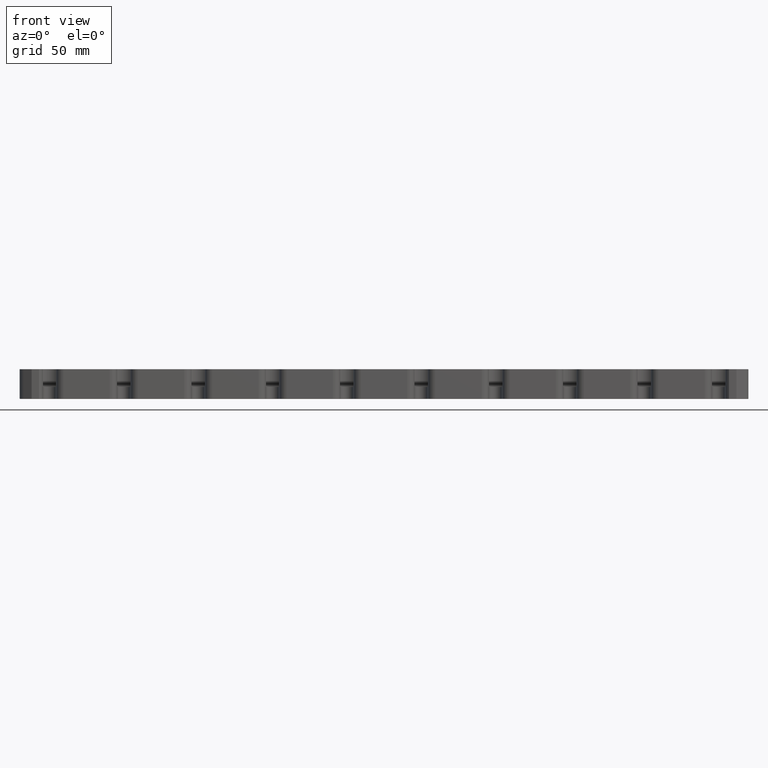
[diagram: clean part render]
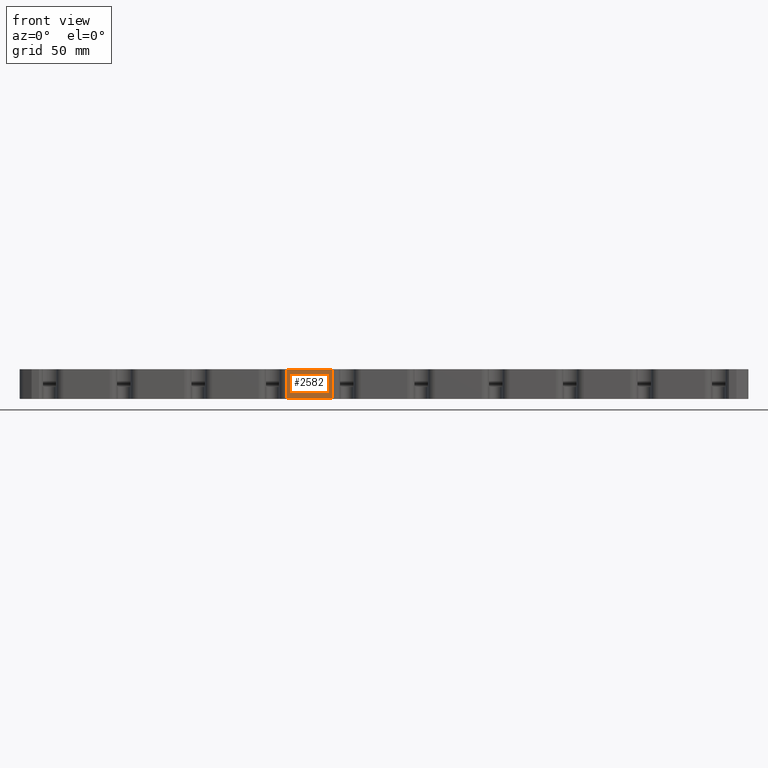
[diagram: same view with one face highlighted and labeled with its STEP entity id]
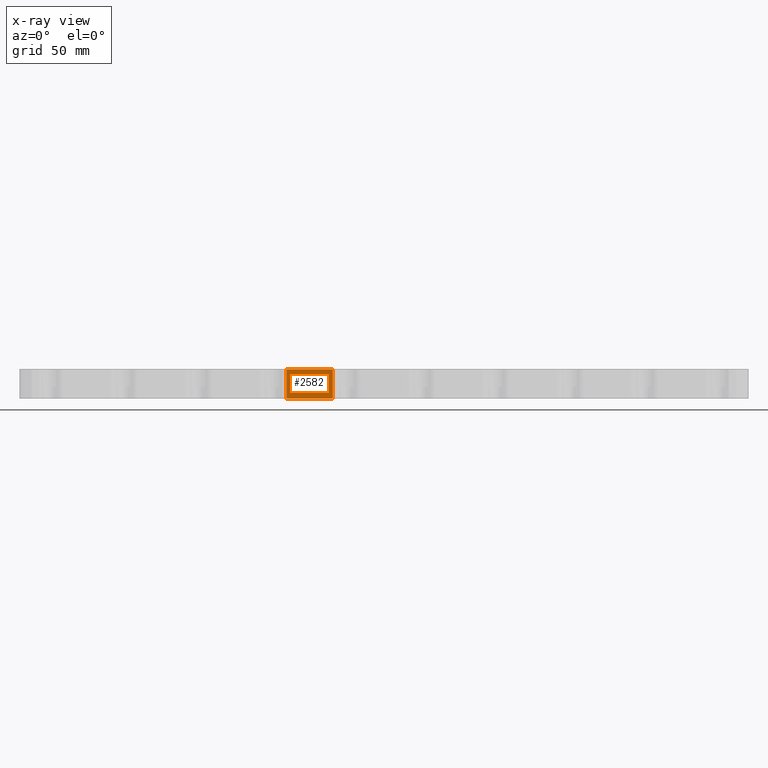
[diagram: x-ray of the same camera — body ghosted, the highlighted face saturated]
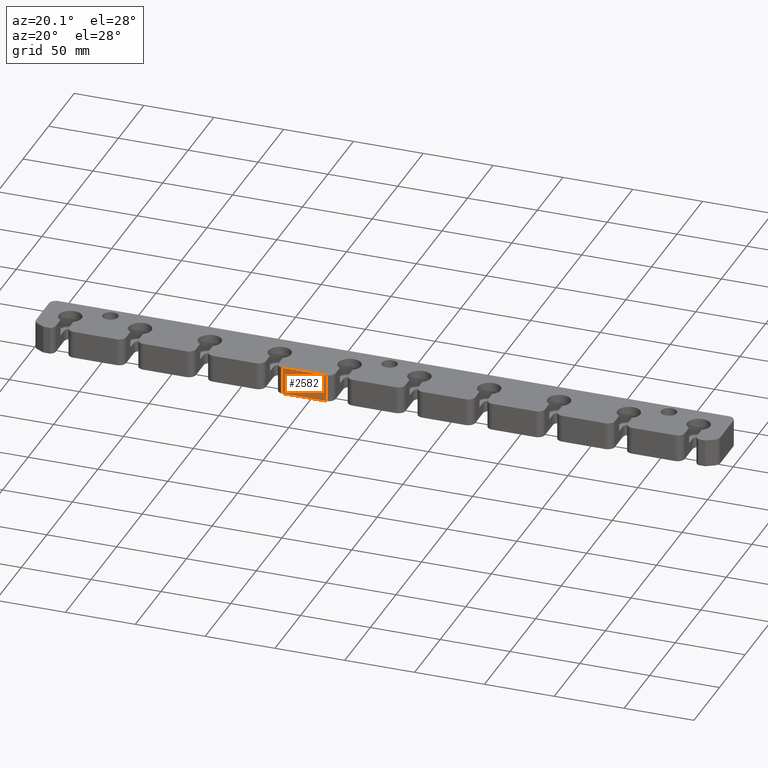
[diagram: same view with one face highlighted and labeled with its STEP entity id]
A machine part, front view. The second image highlights one B-rep face of the part: STEP entity #2582.
The next image is the same camera in x-ray: the body ghosted, the highlighted face saturated — about 0% of this face is hidden behind the body in this view.
A second angle (auxiliary view) of the same face is appended — the face is thin or edge-on in the first view.
In plain terms, the highlighted planar face has unit normal (0, 1, 0).
Its self-contained STEP definition (entity closure, byte-faithful):
#63 = LINE ( 'NONE', #3711, #1354 ) ;
#330 = AXIS2_PLACEMENT_3D ( 'NONE', #878, #2100, #6368 ) ;
#878 = CARTESIAN_POINT ( 'NONE',  ( -70.49999999999998579, -19.00000000000000000, 20.00000000000000000 ) ) ;
#884 = VERTEX_POINT ( 'NONE', #1015 ) ;
#1015 = CARTESIAN_POINT ( 'NONE',  ( -34.49999999999997158, -19.00000000000000000, 0.1732050807568760731 ) ) ;
#1354 = VECTOR ( 'NONE', #3736, 1000.000000000000000 ) ;
#1444 = DIRECTION ( 'NONE',  ( -0.000000000000000000, -0.000000000000000000, 1.000000000000000000 ) ) ;
#1648 = EDGE_CURVE ( 'NONE', #884, #6050, #2590, .T. ) ;
#2060 = FACE_OUTER_BOUND ( 'NONE', #5155, .T. ) ;
#2070 = CARTESIAN_POINT ( 'NONE',  ( -34.49999999999997158, -19.00000000000000000, 20.00000000000000000 ) ) ;
#2100 = DIRECTION ( 'NONE',  ( 0.000000000000000000, 1.000000000000000000, 0.000000000000000000 ) ) ;
#2116 = EDGE_CURVE ( 'NONE', #6050, #6643, #4096, .T. ) ;
#2239 = CARTESIAN_POINT ( 'NONE',  ( -65.49999999999997158, -19.00000000000000000, 0.1732050807568760731 ) ) ;
#2319 = VERTEX_POINT ( 'NONE', #2239 ) ;
#2582 = ADVANCED_FACE ( 'NONE', ( #2060 ), #4125, .F. ) ;
#2590 = LINE ( 'NONE', #2070, #3003 ) ;
#2683 = DIRECTION ( 'NONE',  ( -1.000000000000000000, 0.000000000000000000, 0.000000000000000000 ) ) ;
#2685 = VECTOR ( 'NONE', #5478, 1000.000000000000000 ) ;
#3003 = VECTOR ( 'NONE', #1444, 1000.000000000000000 ) ;
#3065 = ORIENTED_EDGE ( 'NONE', *, *, #2116, .T. ) ;
#3081 = VECTOR ( 'NONE', #2683, 1000.000000000000000 ) ;
#3270 = CARTESIAN_POINT ( 'NONE',  ( -70.49999999999998579, -19.00000000000000000, 19.82679491924317361 ) ) ;
#3527 = CARTESIAN_POINT ( 'NONE',  ( -34.49999999999997158, -19.00000000000000000, 19.82679491924317361 ) ) ;
#3711 = CARTESIAN_POINT ( 'NONE',  ( -65.49999999999997158, -19.00000000000000000, 0.000000000000000000 ) ) ;
#3736 = DIRECTION ( 'NONE',  ( 0.000000000000000000, 0.000000000000000000, -1.000000000000000000 ) ) ;
#3995 = EDGE_CURVE ( 'NONE', #6643, #2319, #63, .T. ) ;
#4039 = ORIENTED_EDGE ( 'NONE', *, *, #3995, .T. ) ;
#4096 = LINE ( 'NONE', #3270, #3081 ) ;
#4125 = PLANE ( 'NONE',  #330 ) ;
#4669 = ORIENTED_EDGE ( 'NONE', *, *, #4698, .T. ) ;
#4698 = EDGE_CURVE ( 'NONE', #2319, #884, #5460, .T. ) ;
#4973 = CARTESIAN_POINT ( 'NONE',  ( -34.49999999999998579, -19.00000000000000000, 0.1732050807568760731 ) ) ;
#5155 = EDGE_LOOP ( 'NONE', ( #4039, #4669, #6162, #3065 ) ) ;
#5460 = LINE ( 'NONE', #4973, #2685 ) ;
#5478 = DIRECTION ( 'NONE',  ( 1.000000000000000000, 0.000000000000000000, 0.000000000000000000 ) ) ;
#6050 = VERTEX_POINT ( 'NONE', #3527 ) ;
#6162 = ORIENTED_EDGE ( 'NONE', *, *, #1648, .T. ) ;
#6368 = DIRECTION ( 'NONE',  ( 0.000000000000000000, -0.000000000000000000, 1.000000000000000000 ) ) ;
#6643 = VERTEX_POINT ( 'NONE', #6703 ) ;
#6703 = CARTESIAN_POINT ( 'NONE',  ( -65.49999999999997158, -19.00000000000000000, 19.82679491924317361 ) ) ;